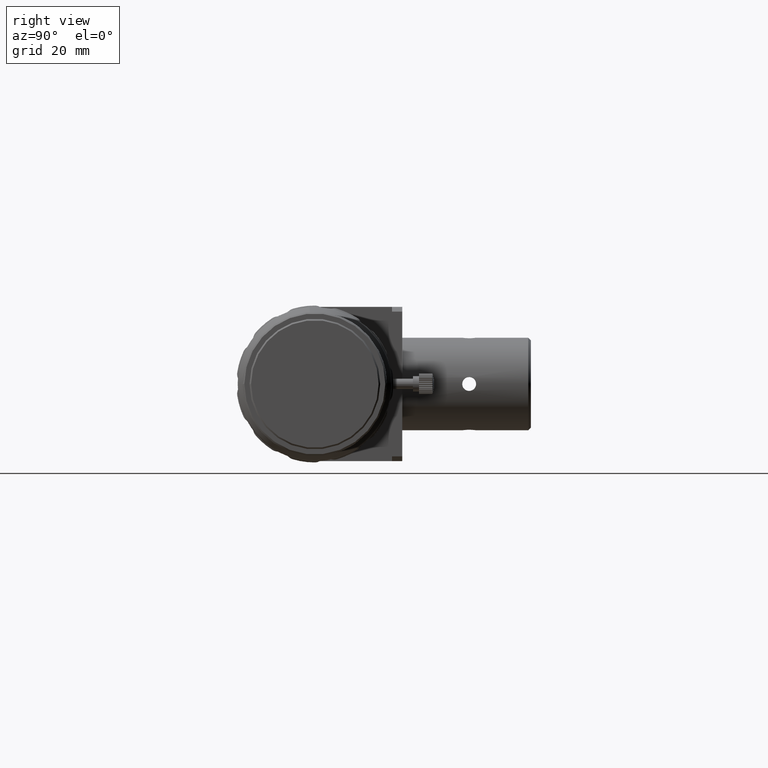
[diagram: clean part render]
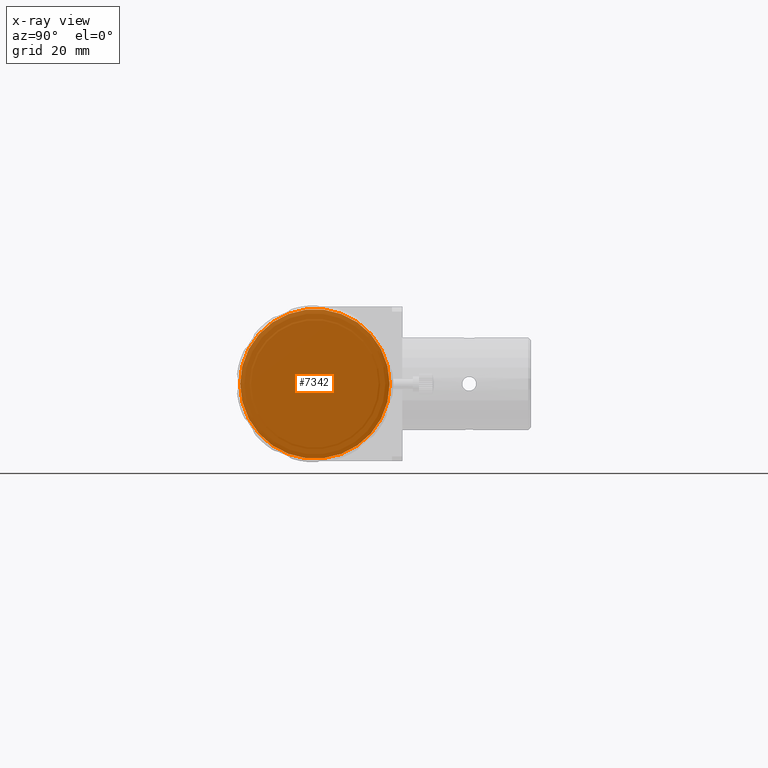
[diagram: x-ray — body ghosted, one internal face saturated and labeled with its STEP entity id]
A machine part, right view, then the same camera in x-ray: the body is ghosted and one INTERNAL B-rep face — a face not visible from any outside direction — is saturated and labeled: STEP entity #7342.
In plain terms, the highlighted planar face has unit normal (-1, 0, -0).
Its self-contained STEP definition (entity closure, byte-faithful):
#63 = AXIS2_PLACEMENT_3D ( 'NONE', #1530, #1493, #6660 ) ;
#696 = CARTESIAN_POINT ( 'NONE',  ( -51.47582244241313276, 14.53536256314270503, 5.386093316446118628E-15 ) ) ;
#931 = CARTESIAN_POINT ( 'NONE',  ( -51.47582244241314697, 56.17486957814339377, 31.20951493132242049 ) ) ;
#1493 = DIRECTION ( 'NONE',  ( 1.000000000000000000, -1.725633230170963324E-31, 4.974117493840302992E-16 ) ) ;
#1530 = CARTESIAN_POINT ( 'NONE',  ( -51.47582244241313276, 3.469446951953614189E-15, 3.469446951953614189E-15 ) ) ;
#2172 = EDGE_CURVE ( 'NONE', #7192, #7192, #3882, .T. ) ;
#3662 = DIRECTION ( 'NONE',  ( -1.000000000000000000, 1.888486902210228761E-31, -4.974117493840302992E-16 ) ) ;
#3882 = CIRCLE ( 'NONE', #63, 14.53536256314270148 ) ;
#4185 = AXIS2_PLACEMENT_3D ( 'NONE', #931, #3662, #5971 ) ;
#4247 = PLANE ( 'NONE',  #4185 ) ;
#5014 = EDGE_LOOP ( 'NONE', ( #7153 ) ) ;
#5971 = DIRECTION ( 'NONE',  ( 1.232595164407830946E-31, 1.000000000000000000, 1.318609258053556594E-16 ) ) ;
#6660 = DIRECTION ( 'NONE',  ( 0.000000000000000000, 1.000000000000000000, 1.318609258053556840E-16 ) ) ;
#7153 = ORIENTED_EDGE ( 'NONE', *, *, #2172, .T. ) ;
#7179 = FACE_OUTER_BOUND ( 'NONE', #5014, .T. ) ;
#7192 = VERTEX_POINT ( 'NONE', #696 ) ;
#7342 = ADVANCED_FACE ( 'NONE', ( #7179 ), #4247, .F. ) ;